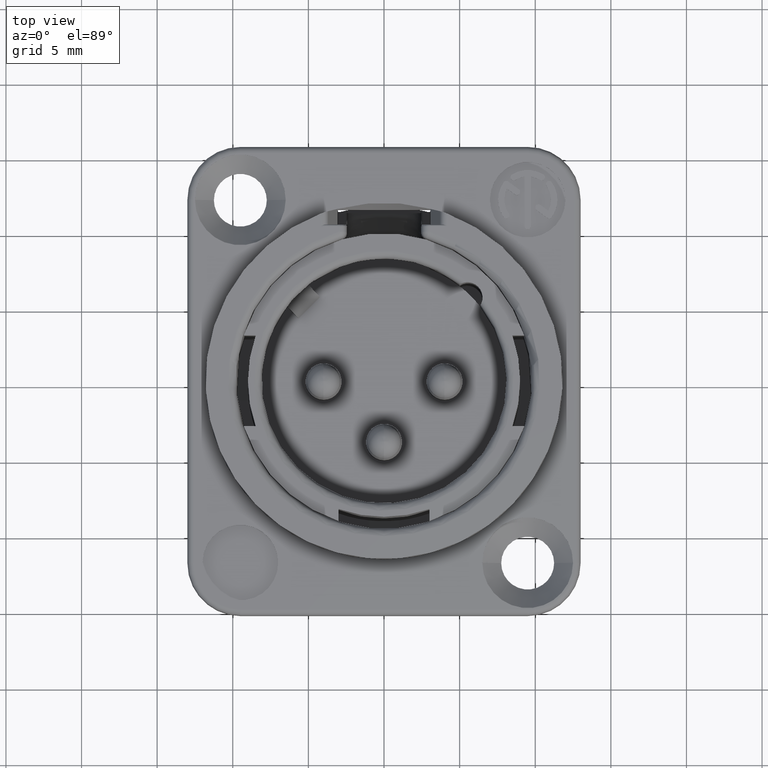
[diagram: clean part render]
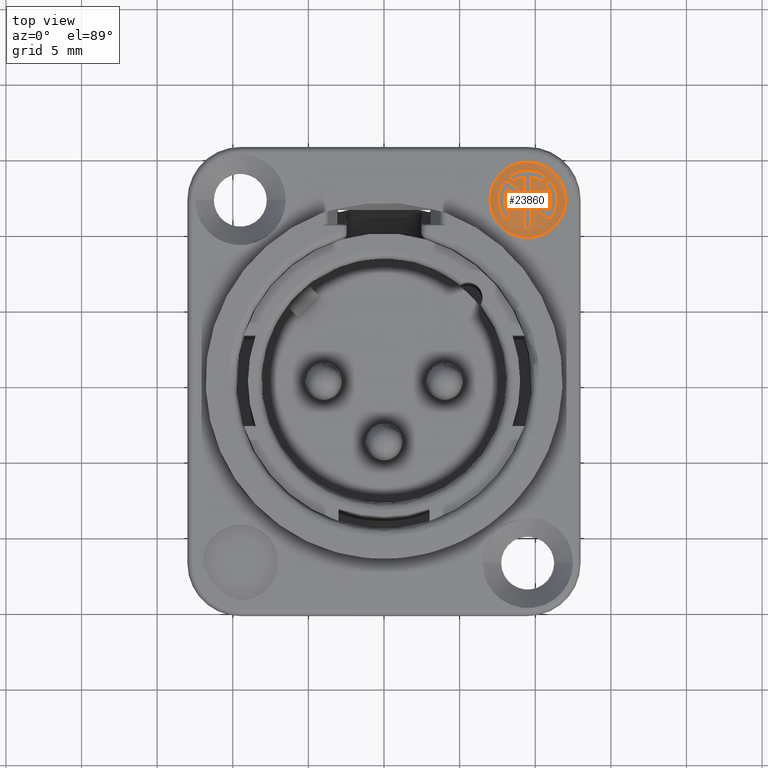
[diagram: same view with one face highlighted and labeled with its STEP entity id]
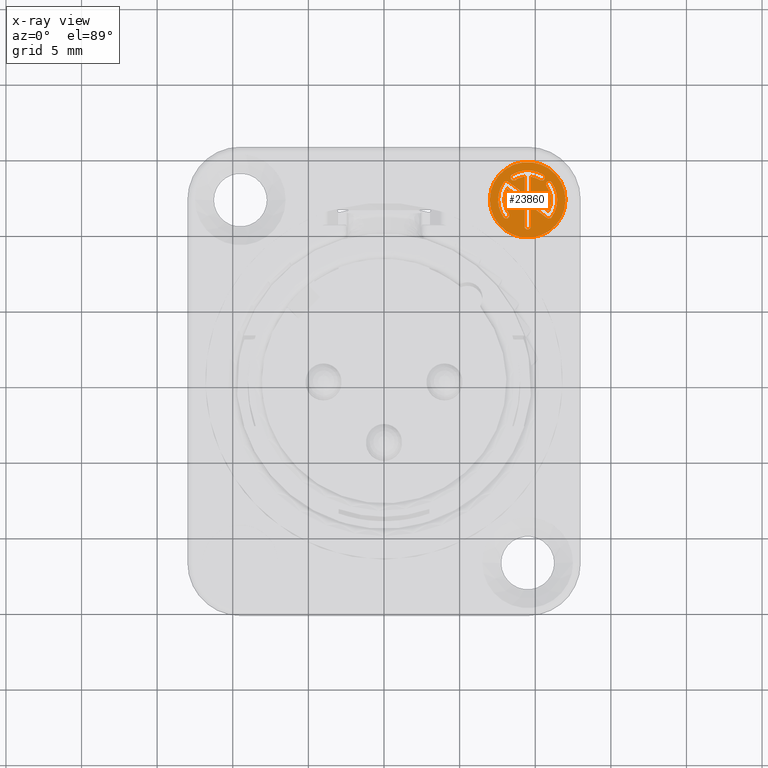
[diagram: x-ray of the same camera — body ghosted, the highlighted face saturated]
A machine part, top view. The second image highlights one B-rep face of the part: STEP entity #23860.
The next image is the same camera in x-ray: the body ghosted, the highlighted face saturated — about 0% of this face is hidden behind the body in this view.
In plain terms, the highlighted planar face has unit normal (0, 0, 1).
Its self-contained STEP definition (entity closure, byte-faithful):
#7980=CARTESIAN_POINT('',(9.5E0,1.2E1,1.7E0));
#7981=DIRECTION('',(0.E0,0.E0,1.E0));
#7982=DIRECTION('',(1.E0,0.E0,0.E0));
#7983=AXIS2_PLACEMENT_3D('',#7980,#7981,#7982);
#7985=CARTESIAN_POINT('',(9.5E0,1.2E1,1.7E0));
#7986=DIRECTION('',(0.E0,0.E0,1.E0));
#7987=DIRECTION('',(-1.E0,0.E0,0.E0));
#7988=AXIS2_PLACEMENT_3D('',#7985,#7986,#7987);
#8000=CARTESIAN_POINT('',(9.5E0,1.025E1,1.7E0));
#8001=DIRECTION('',(0.E0,0.E0,1.E0));
#8002=DIRECTION('',(-1.E0,0.E0,0.E0));
#8003=AXIS2_PLACEMENT_3D('',#8000,#8001,#8002);
#8005=DIRECTION('',(0.E0,1.E0,0.E0));
#8006=VECTOR('',#8005,3.275614630239E0);
#8007=CARTESIAN_POINT('',(9.71E0,1.025E1,1.7E0));
#8008=LINE('',#8007,#8006);
#8009=CARTESIAN_POINT('',(9.5E0,1.2E1,1.7E0));
#8010=DIRECTION('',(0.E0,0.E0,1.E0));
#8011=DIRECTION('',(5.299192642332E-1,8.480480961564E-1,0.E0));
#8012=AXIS2_PLACEMENT_3D('',#8009,#8010,#8011);
#8014=CARTESIAN_POINT('',(1.042735871241E1,1.348408416827E1,1.7E0));
#8015=DIRECTION('',(0.E0,0.E0,1.E0));
#8016=DIRECTION('',(-5.299192642332E-1,-8.480480961564E-1,0.E0));
#8017=AXIS2_PLACEMENT_3D('',#8014,#8015,#8016);
#8019=CARTESIAN_POINT('',(9.5E0,1.2E1,1.7E0));
#8020=DIRECTION('',(0.E0,0.E0,1.E0));
#8021=DIRECTION('',(5.299192642332E-1,8.480480961564E-1,0.E0));
#8022=AXIS2_PLACEMENT_3D('',#8019,#8020,#8021);
#8024=CARTESIAN_POINT('',(8.572641287592E0,1.348408416827E1,1.7E0));
#8025=DIRECTION('',(0.E0,0.E0,1.E0));
#8026=DIRECTION('',(-5.299192642332E-1,8.480480961564E-1,0.E0));
#8027=AXIS2_PLACEMENT_3D('',#8024,#8025,#8026);
#8029=CARTESIAN_POINT('',(9.5E0,1.2E1,1.7E0));
#8030=DIRECTION('',(0.E0,0.E0,1.E0));
#8031=DIRECTION('',(-1.363636363636E-1,9.906588508047E-1,0.E0));
#8032=AXIS2_PLACEMENT_3D('',#8029,#8030,#8031);
#8034=DIRECTION('',(0.E0,-1.E0,0.E0));
#8035=VECTOR('',#8034,3.275614630239E0);
#8036=CARTESIAN_POINT('',(9.29E0,1.352561463024E1,1.7E0));
#8037=LINE('',#8036,#8035);
#8038=CARTESIAN_POINT('',(8.084220259844E0,1.097137580849E1,1.7E0));
#8039=DIRECTION('',(0.E0,0.E0,1.E0));
#8040=DIRECTION('',(-8.090169943749E-1,-5.877852522925E-1,0.E0));
#8041=AXIS2_PLACEMENT_3D('',#8038,#8039,#8040);
#8043=CARTESIAN_POINT('',(9.5E0,1.2E1,1.7E0));
#8044=DIRECTION('',(0.E0,0.E0,1.E0));
#8045=DIRECTION('',(-8.816123803325E-1,4.719741633231E-1,0.E0));
#8046=AXIS2_PLACEMENT_3D('',#8043,#8044,#8045);
#8048=DIRECTION('',(8.090169943749E-1,-5.877852522925E-1,0.E0));
#8049=VECTOR('',#8048,6.506146302392E-1);
#8050=CARTESIAN_POINT('',(8.142316934288E0,1.272684021152E1,1.7E0));
#8051=LINE('',#8050,#8049);
#8052=CARTESIAN_POINT('',(8.792110129922E0,1.251431209576E1,1.7E0));
#8053=DIRECTION('',(0.E0,0.E0,1.E0));
#8054=DIRECTION('',(-5.877852522925E-1,-8.090169943749E-1,0.E0));
#8055=AXIS2_PLACEMENT_3D('',#8052,#8053,#8054);
#8057=DIRECTION('',(-8.090169943749E-1,5.877852522925E-1,0.E0));
#8058=VECTOR('',#8057,8.75E-1);
#8059=CARTESIAN_POINT('',(8.915545032903E0,1.268420566457E1,1.7E0));
#8060=LINE('',#8059,#8058);
#8061=CARTESIAN_POINT('',(8.084220259844E0,1.302862419151E1,1.7E0));
#8062=DIRECTION('',(0.E0,0.E0,1.E0));
#8063=DIRECTION('',(5.877852522925E-1,8.090169943749E-1,0.E0));
#8064=AXIS2_PLACEMENT_3D('',#8061,#8062,#8063);
#8066=CARTESIAN_POINT('',(9.5E0,1.2E1,1.7E0));
#8067=DIRECTION('',(0.E0,0.E0,1.E0));
#8068=DIRECTION('',(-8.090169943749E-1,5.877852522925E-1,0.E0));
#8069=AXIS2_PLACEMENT_3D('',#8066,#8067,#8068);
#8071=DIRECTION('',(-8.090169943749E-1,5.877852522925E-1,0.E0));
#8072=VECTOR('',#8071,6.506146302392E-1);
#8073=CARTESIAN_POINT('',(1.085768306571E1,1.127315978848E1,1.7E0));
#8074=LINE('',#8073,#8072);
#8075=CARTESIAN_POINT('',(1.020788987008E1,1.148568790424E1,1.7E0));
#8076=DIRECTION('',(0.E0,0.E0,1.E0));
#8077=DIRECTION('',(5.877852522925E-1,8.090169943749E-1,0.E0));
#8078=AXIS2_PLACEMENT_3D('',#8075,#8076,#8077);
#8080=DIRECTION('',(8.090169943749E-1,-5.877852522925E-1,0.E0));
#8081=VECTOR('',#8080,8.75E-1);
#8082=CARTESIAN_POINT('',(1.008445496710E1,1.131579433543E1,1.7E0));
#8083=LINE('',#8082,#8081);
#8084=CARTESIAN_POINT('',(1.091577974016E1,1.097137580849E1,1.7E0));
#8085=DIRECTION('',(0.E0,0.E0,1.E0));
#8086=DIRECTION('',(-5.877852522925E-1,-8.090169943749E-1,0.E0));
#8087=AXIS2_PLACEMENT_3D('',#8084,#8085,#8086);
#8089=CARTESIAN_POINT('',(9.5E0,1.2E1,1.7E0));
#8090=DIRECTION('',(0.E0,0.E0,1.E0));
#8091=DIRECTION('',(8.090169943749E-1,-5.877852522925E-1,0.E0));
#8092=AXIS2_PLACEMENT_3D('',#8089,#8090,#8091);
#8094=CARTESIAN_POINT('',(1.091577974016E1,1.302862419151E1,1.7E0));
#8095=DIRECTION('',(0.E0,0.E0,1.E0));
#8096=DIRECTION('',(8.090169943750E-1,5.877852522925E-1,0.E0));
#8097=AXIS2_PLACEMENT_3D('',#8094,#8095,#8096);
#8099=CARTESIAN_POINT('',(9.5E0,1.2E1,1.7E0));
#8100=DIRECTION('',(0.E0,0.E0,1.E0));
#8101=DIRECTION('',(8.816123803325E-1,-4.719741633231E-1,0.E0));
#8102=AXIS2_PLACEMENT_3D('',#8099,#8100,#8101);
#10851=CARTESIAN_POINT('',(1.2E1,1.2E1,1.7E0));
#10852=CARTESIAN_POINT('',(7.E0,1.2E1,1.7E0));
#10853=VERTEX_POINT('',#10851);
#10854=VERTEX_POINT('',#10852);
#10911=CARTESIAN_POINT('',(9.29E0,1.025E1,1.7E0));
#10912=CARTESIAN_POINT('',(9.71E0,1.025E1,1.7E0));
#10913=VERTEX_POINT('',#10911);
#10914=VERTEX_POINT('',#10912);
#10915=CARTESIAN_POINT('',(9.71E0,1.352561463024E1,1.7E0));
#10916=VERTEX_POINT('',#10915);
#10917=CARTESIAN_POINT('',(1.031607566692E1,1.330599406808E1,1.7E0));
#10918=VERTEX_POINT('',#10917);
#10919=CARTESIAN_POINT('',(1.053864175790E1,1.366217426847E1,1.7E0));
#10920=VERTEX_POINT('',#10919);
#10921=CARTESIAN_POINT('',(8.461358242103E0,1.366217426847E1,1.7E0));
#10922=VERTEX_POINT('',#10921);
#10923=CARTESIAN_POINT('',(8.683924333081E0,1.330599406808E1,1.7E0));
#10924=VERTEX_POINT('',#10923);
#10925=CARTESIAN_POINT('',(9.29E0,1.352561463024E1,1.7E0));
#10926=VERTEX_POINT('',#10925);
#10927=CARTESIAN_POINT('',(7.914326691025E0,1.084794090551E1,1.7E0));
#10928=CARTESIAN_POINT('',(8.254113828663E0,1.109481071147E1,1.7E0));
#10929=VERTEX_POINT('',#10927);
#10930=VERTEX_POINT('',#10928);
#10931=CARTESIAN_POINT('',(8.142316934288E0,1.272684021152E1,1.7E0));
#10932=VERTEX_POINT('',#10931);
#10933=CARTESIAN_POINT('',(8.668675226941E0,1.234441852694E1,1.7E0));
#10934=VERTEX_POINT('',#10933);
#10935=CARTESIAN_POINT('',(8.915545032903E0,1.268420566457E1,1.7E0));
#10936=VERTEX_POINT('',#10935);
#10937=CARTESIAN_POINT('',(8.207655162825E0,1.319851776033E1,1.7E0));
#10938=VERTEX_POINT('',#10937);
#10939=CARTESIAN_POINT('',(7.914326691025E0,1.315205909449E1,1.7E0));
#10940=VERTEX_POINT('',#10939);
#10941=CARTESIAN_POINT('',(1.085768306571E1,1.127315978848E1,1.7E0));
#10942=CARTESIAN_POINT('',(1.033132477306E1,1.165558147306E1,1.7E0));
#10943=VERTEX_POINT('',#10941);
#10944=VERTEX_POINT('',#10942);
#10945=CARTESIAN_POINT('',(1.008445496710E1,1.131579433543E1,1.7E0));
#10946=VERTEX_POINT('',#10945);
#10947=CARTESIAN_POINT('',(1.079234483717E1,1.080148223967E1,1.7E0));
#10948=VERTEX_POINT('',#10947);
#10949=CARTESIAN_POINT('',(1.108567330897E1,1.084794090551E1,1.7E0));
#10950=VERTEX_POINT('',#10949);
#10951=CARTESIAN_POINT('',(1.108567330897E1,1.315205909449E1,1.7E0));
#10952=VERTEX_POINT('',#10951);
#10953=CARTESIAN_POINT('',(1.074588617134E1,1.290518928853E1,1.7E0));
#10954=VERTEX_POINT('',#10953);
#23801=CARTESIAN_POINT('',(0.E0,0.E0,1.7E0));
#23802=DIRECTION('',(0.E0,0.E0,1.E0));
#23803=DIRECTION('',(1.E0,0.E0,0.E0));
#23804=AXIS2_PLACEMENT_3D('',#23801,#23802,#23803);
#23805=PLANE('',#23804);
#23806=ORIENTED_EDGE('',*,*,#23781,.F.);
#23807=ORIENTED_EDGE('',*,*,#23795,.F.);
#23808=EDGE_LOOP('',(#23806,#23807));
#23809=FACE_OUTER_BOUND('',#23808,.F.);
#23811=ORIENTED_EDGE('',*,*,#23810,.T.);
#23813=ORIENTED_EDGE('',*,*,#23812,.T.);
#23815=ORIENTED_EDGE('',*,*,#23814,.F.);
#23817=ORIENTED_EDGE('',*,*,#23816,.T.);
#23819=ORIENTED_EDGE('',*,*,#23818,.T.);
#23821=ORIENTED_EDGE('',*,*,#23820,.T.);
#23823=ORIENTED_EDGE('',*,*,#23822,.F.);
#23825=ORIENTED_EDGE('',*,*,#23824,.T.);
#23826=EDGE_LOOP('',(#23811,#23813,#23815,#23817,#23819,#23821,#23823,#23825));
#23827=FACE_BOUND('',#23826,.F.);
#23829=ORIENTED_EDGE('',*,*,#23828,.T.);
#23831=ORIENTED_EDGE('',*,*,#23830,.F.);
#23833=ORIENTED_EDGE('',*,*,#23832,.T.);
#23835=ORIENTED_EDGE('',*,*,#23834,.T.);
#23837=ORIENTED_EDGE('',*,*,#23836,.T.);
#23839=ORIENTED_EDGE('',*,*,#23838,.T.);
#23841=ORIENTED_EDGE('',*,*,#23840,.T.);
#23842=EDGE_LOOP('',(#23829,#23831,#23833,#23835,#23837,#23839,#23841));
#23843=FACE_BOUND('',#23842,.F.);
#23845=ORIENTED_EDGE('',*,*,#23844,.T.);
#23847=ORIENTED_EDGE('',*,*,#23846,.T.);
#23849=ORIENTED_EDGE('',*,*,#23848,.T.);
#23851=ORIENTED_EDGE('',*,*,#23850,.T.);
#23853=ORIENTED_EDGE('',*,*,#23852,.T.);
#23855=ORIENTED_EDGE('',*,*,#23854,.T.);
#23857=ORIENTED_EDGE('',*,*,#23856,.F.);
#23858=EDGE_LOOP('',(#23845,#23847,#23849,#23851,#23853,#23855,#23857));
#23859=FACE_BOUND('',#23858,.F.);
#23860=ADVANCED_FACE('',(#23809,#23827,#23843,#23859),#23805,.T.);
#7984=CIRCLE('',#7983,2.5E0);
#7989=CIRCLE('',#7988,2.5E0);
#8004=CIRCLE('',#8003,2.1E-1);
#8013=CIRCLE('',#8012,1.54E0);
#8018=CIRCLE('',#8017,2.1E-1);
#8023=CIRCLE('',#8022,1.96E0);
#8028=CIRCLE('',#8027,2.1E-1);
#8033=CIRCLE('',#8032,1.54E0);
#8042=CIRCLE('',#8041,2.1E-1);
#8047=CIRCLE('',#8046,1.54E0);
#8056=CIRCLE('',#8055,2.1E-1);
#8065=CIRCLE('',#8064,2.1E-1);
#8070=CIRCLE('',#8069,1.96E0);
#8079=CIRCLE('',#8078,2.1E-1);
#8088=CIRCLE('',#8087,2.1E-1);
#8093=CIRCLE('',#8092,1.96E0);
#8098=CIRCLE('',#8097,2.1E-1);
#8103=CIRCLE('',#8102,1.54E0);
#23781=EDGE_CURVE('',#10853,#10854,#7984,.T.);
#23795=EDGE_CURVE('',#10854,#10853,#7989,.T.);
#23810=EDGE_CURVE('',#10913,#10914,#8004,.T.);
#23812=EDGE_CURVE('',#10914,#10916,#8008,.T.);
#23814=EDGE_CURVE('',#10918,#10916,#8013,.T.);
#23816=EDGE_CURVE('',#10918,#10920,#8018,.T.);
#23818=EDGE_CURVE('',#10920,#10922,#8023,.T.);
#23820=EDGE_CURVE('',#10922,#10924,#8028,.T.);
#23822=EDGE_CURVE('',#10926,#10924,#8033,.T.);
#23824=EDGE_CURVE('',#10926,#10913,#8037,.T.);
#23828=EDGE_CURVE('',#10929,#10930,#8042,.T.);
#23830=EDGE_CURVE('',#10932,#10930,#8047,.T.);
#23832=EDGE_CURVE('',#10932,#10934,#8051,.T.);
#23834=EDGE_CURVE('',#10934,#10936,#8056,.T.);
#23836=EDGE_CURVE('',#10936,#10938,#8060,.T.);
#23838=EDGE_CURVE('',#10938,#10940,#8065,.T.);
#23840=EDGE_CURVE('',#10940,#10929,#8070,.T.);
#23844=EDGE_CURVE('',#10943,#10944,#8074,.T.);
#23846=EDGE_CURVE('',#10944,#10946,#8079,.T.);
#23848=EDGE_CURVE('',#10946,#10948,#8083,.T.);
#23850=EDGE_CURVE('',#10948,#10950,#8088,.T.);
#23852=EDGE_CURVE('',#10950,#10952,#8093,.T.);
#23854=EDGE_CURVE('',#10952,#10954,#8098,.T.);
#23856=EDGE_CURVE('',#10943,#10954,#8103,.T.);